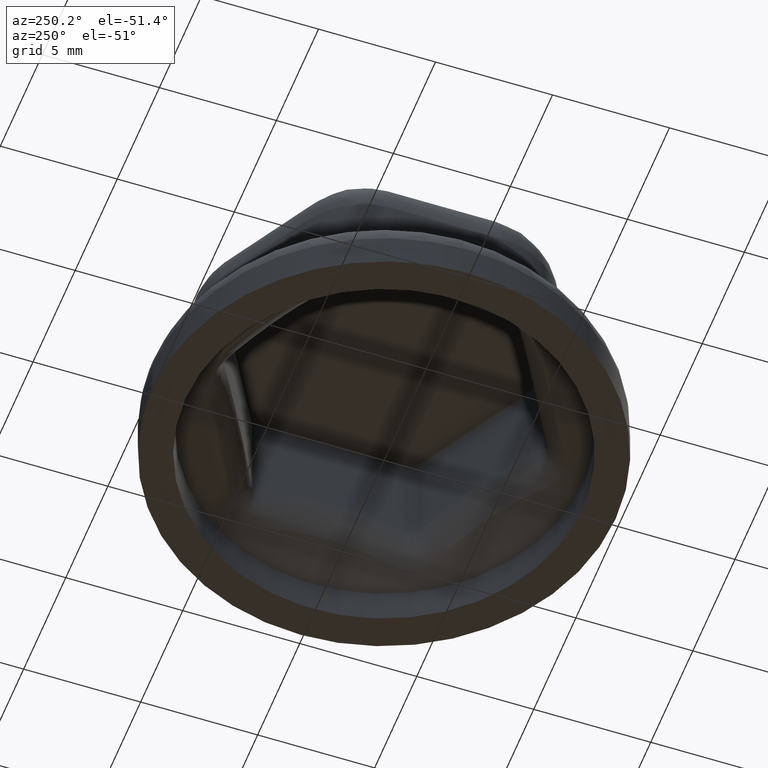
[diagram: clean part render]
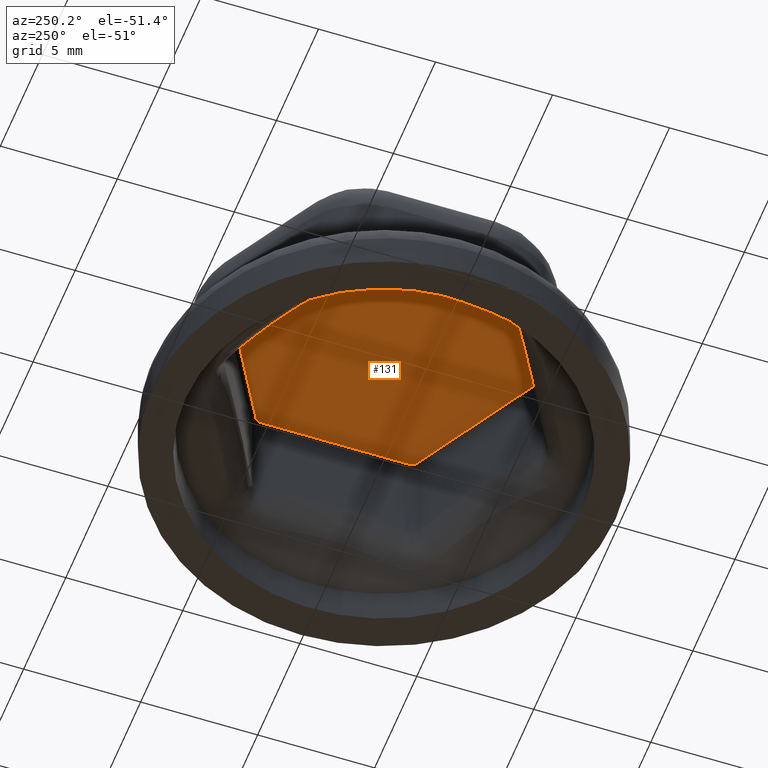
[diagram: same view with one face highlighted and labeled with its STEP entity id]
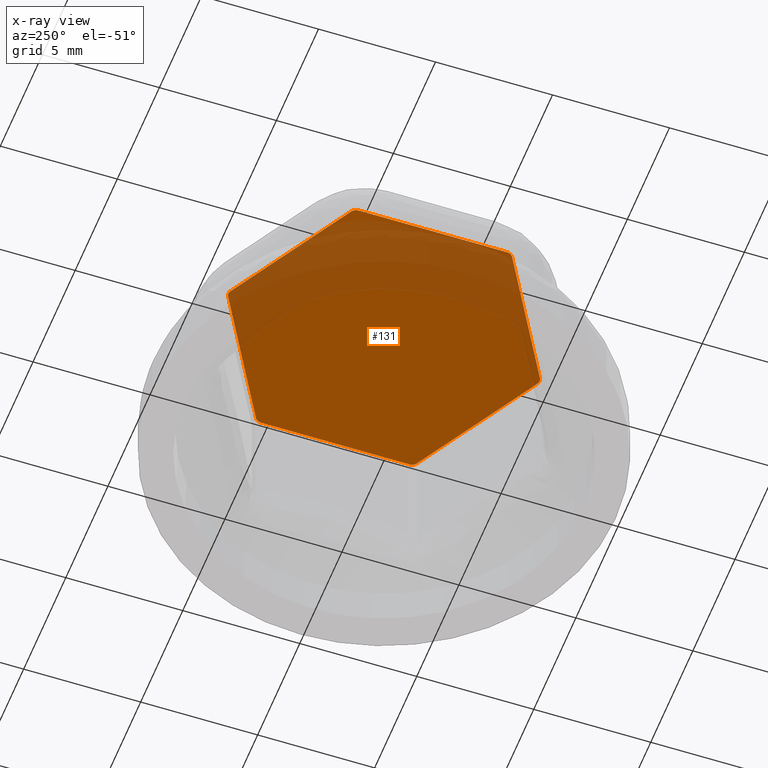
[diagram: x-ray of the same camera — body ghosted, the highlighted face saturated]
A machine part, auxiliary view. The second image highlights one B-rep face of the part: STEP entity #131.
The next image is the same camera in x-ray: the body ghosted, the highlighted face saturated — about 33% of this face is hidden behind the body in this view.
In plain terms, the highlighted planar face has unit normal (0, 0, 1).
Its self-contained STEP definition (entity closure, byte-faithful):
#131 = ADVANCED_FACE( '', ( #271 ), #272, .F. );
#271 = FACE_OUTER_BOUND( '', #2605, .T. );
#272 = PLANE( '', #2606 );
#2605 = EDGE_LOOP( '', ( #3063, #3064, #3065, #3066, #3067, #3068, #3069, #3070, #3071, #3072, #3073, #3074 ) );
#2606 = AXIS2_PLACEMENT_3D( '', #3075, #3076, #3077 );
#3063 = ORIENTED_EDGE( '', *, *, #3378, .F. );
#3064 = ORIENTED_EDGE( '', *, *, #3379, .F. );
#3065 = ORIENTED_EDGE( '', *, *, #3380, .F. );
#3066 = ORIENTED_EDGE( '', *, *, #3381, .F. );
#3067 = ORIENTED_EDGE( '', *, *, #3382, .F. );
#3068 = ORIENTED_EDGE( '', *, *, #3259, .F. );
#3069 = ORIENTED_EDGE( '', *, *, #3383, .F. );
#3070 = ORIENTED_EDGE( '', *, *, #3384, .F. );
#3071 = ORIENTED_EDGE( '', *, *, #3385, .F. );
#3072 = ORIENTED_EDGE( '', *, *, #3386, .F. );
#3073 = ORIENTED_EDGE( '', *, *, #3377, .F. );
#3074 = ORIENTED_EDGE( '', *, *, #3387, .F. );
#3075 = CARTESIAN_POINT( '', ( 6.00000000000000, 3.46410161513775, 7.50000000000000 ) );
#3076 = DIRECTION( '', ( 0.000000000000000, 0.000000000000000, 1.00000000000000 ) );
#3077 = DIRECTION( '', ( 0.500000000000000, 0.866025403784439, 0.000000000000000 ) );
#3259 = EDGE_CURVE( '', #3446, #3448, #3449, .T. );
#3377 = EDGE_CURVE( '', #3633, #3631, #3635, .T. );
#3378 = EDGE_CURVE( '', #3636, #3637, #3638, .T. );
#3379 = EDGE_CURVE( '', #3639, #3636, #3640, .T. );
#3380 = EDGE_CURVE( '', #3641, #3639, #3642, .T. );
#3381 = EDGE_CURVE( '', #3643, #3641, #3644, .T. );
#3382 = EDGE_CURVE( '', #3448, #3643, #3645, .T. );
#3383 = EDGE_CURVE( '', #3646, #3446, #3647, .T. );
#3384 = EDGE_CURVE( '', #3648, #3646, #3649, .T. );
#3385 = EDGE_CURVE( '', #3650, #3648, #3651, .T. );
#3386 = EDGE_CURVE( '', #3631, #3650, #3652, .T. );
#3387 = EDGE_CURVE( '', #3637, #3633, #3653, .T. );
#3446 = VERTEX_POINT( '', #3860 );
#3448 = VERTEX_POINT( '', #3862 );
#3449 = CIRCLE( '', #3863, 0.300000000000000 );
#3631 = VERTEX_POINT( '', #5124 );
#3633 = VERTEX_POINT( '', #5126 );
#3635 = LINE( '', #5128, #5129 );
#3636 = VERTEX_POINT( '', #5130 );
#3637 = VERTEX_POINT( '', #5131 );
#3638 = LINE( '', #5132, #5133 );
#3639 = VERTEX_POINT( '', #5134 );
#3640 = CIRCLE( '', #5135, 0.300000000000000 );
#3641 = VERTEX_POINT( '', #5136 );
#3642 = LINE( '', #5137, #5138 );
#3643 = VERTEX_POINT( '', #5139 );
#3644 = CIRCLE( '', #5140, 0.300000000000000 );
#3645 = LINE( '', #5141, #5142 );
#3646 = VERTEX_POINT( '', #5143 );
#3647 = LINE( '', #5144, #5145 );
#3648 = VERTEX_POINT( '', #5146 );
#3649 = CIRCLE( '', #5147, 0.300000000000000 );
#3650 = VERTEX_POINT( '', #5148 );
#3651 = LINE( '', #5149, #5150 );
#3652 = CIRCLE( '', #5151, 0.300000000000000 );
#3653 = CIRCLE( '', #5152, 0.300000000000000 );
#3860 = CARTESIAN_POINT( '', ( 5.80000000000000, 3.17542648054294, 7.50000000000000 ) );
#3862 = CARTESIAN_POINT( '', ( 5.65000000000000, 3.43523410167827, 7.50000000000000 ) );
#3863 = AXIS2_PLACEMENT_3D( '', #5219, #5220, #5221 );
#5124 = CARTESIAN_POINT( '', ( -0.149999999999999, -6.61066058222121, 7.50000000000000 ) );
#5126 = CARTESIAN_POINT( '', ( -5.65000000000000, -3.43523410167827, 7.50000000000000 ) );
#5128 = CARTESIAN_POINT( '', ( -0.150000000000000, -6.61066058222121, 7.50000000000000 ) );
#5129 = VECTOR( '', #5384, 1000.00000000000 );
#5130 = CARTESIAN_POINT( '', ( -5.80000000000000, 3.17542648054294, 7.50000000000000 ) );
#5131 = CARTESIAN_POINT( '', ( -5.80000000000000, -3.17542648054294, 7.50000000000000 ) );
#5132 = CARTESIAN_POINT( '', ( -5.80000000000000, -3.17542648054294, 7.50000000000000 ) );
#5133 = VECTOR( '', #5385, 1000.00000000000 );
#5134 = CARTESIAN_POINT( '', ( -5.65000000000000, 3.43523410167827, 7.50000000000000 ) );
#5135 = AXIS2_PLACEMENT_3D( '', #5386, #5387, #5388 );
#5136 = CARTESIAN_POINT( '', ( -0.149999999999998, 6.61066058222121, 7.50000000000000 ) );
#5137 = CARTESIAN_POINT( '', ( -5.65000000000000, 3.43523410167827, 7.50000000000000 ) );
#5138 = VECTOR( '', #5389, 1000.00000000000 );
#5139 = CARTESIAN_POINT( '', ( 0.150000000000000, 6.61066058222121, 7.50000000000000 ) );
#5140 = AXIS2_PLACEMENT_3D( '', #5390, #5391, #5392 );
#5141 = CARTESIAN_POINT( '', ( 0.149999999999998, 6.61066058222122, 7.50000000000000 ) );
#5142 = VECTOR( '', #5393, 1000.00000000000 );
#5143 = CARTESIAN_POINT( '', ( 5.80000000000000, -3.17542648054294, 7.50000000000000 ) );
#5144 = CARTESIAN_POINT( '', ( 5.80000000000000, 3.17542648054295, 7.50000000000000 ) );
#5145 = VECTOR( '', #5394, 1000.00000000000 );
#5146 = CARTESIAN_POINT( '', ( 5.65000000000000, -3.43523410167827, 7.50000000000000 ) );
#5147 = AXIS2_PLACEMENT_3D( '', #5395, #5396, #5397 );
#5148 = CARTESIAN_POINT( '', ( 0.150000000000001, -6.61066058222121, 7.50000000000000 ) );
#5149 = CARTESIAN_POINT( '', ( 5.65000000000000, -3.43523410167828, 7.50000000000000 ) );
#5150 = VECTOR( '', #5398, 1000.00000000000 );
#5151 = AXIS2_PLACEMENT_3D( '', #5399, #5400, #5401 );
#5152 = AXIS2_PLACEMENT_3D( '', #5402, #5403, #5404 );
#5219 = CARTESIAN_POINT( '', ( 5.50000000000000, 3.17542648054294, 7.50000000000000 ) );
#5220 = DIRECTION( '', ( 0.000000000000000, 0.000000000000000, 1.00000000000000 ) );
#5221 = DIRECTION( '', ( 1.00000000000000, 0.000000000000000, 0.000000000000000 ) );
#5384 = DIRECTION( '', ( 0.866025403784439, -0.500000000000000, 0.000000000000000 ) );
#5385 = DIRECTION( '', ( 1.11022302462516E-016, -1.00000000000000, 0.000000000000000 ) );
#5386 = CARTESIAN_POINT( '', ( -5.50000000000000, 3.17542648054294, 7.50000000000000 ) );
#5387 = DIRECTION( '', ( 0.000000000000000, 0.000000000000000, 1.00000000000000 ) );
#5388 = DIRECTION( '', ( 1.00000000000000, 0.000000000000000, 0.000000000000000 ) );
#5389 = DIRECTION( '', ( -0.866025403784439, -0.500000000000000, 0.000000000000000 ) );
#5390 = CARTESIAN_POINT( '', ( 1.51788304147971E-015, 6.35085296108588, 7.50000000000000 ) );
#5391 = DIRECTION( '', ( 0.000000000000000, 0.000000000000000, 1.00000000000000 ) );
#5392 = DIRECTION( '', ( 1.00000000000000, 0.000000000000000, 0.000000000000000 ) );
#5393 = DIRECTION( '', ( -0.866025403784439, 0.500000000000000, 0.000000000000000 ) );
#5394 = DIRECTION( '', ( 3.33066907387547E-016, 1.00000000000000, 0.000000000000000 ) );
#5395 = CARTESIAN_POINT( '', ( 5.50000000000000, -3.17542648054294, 7.50000000000000 ) );
#5396 = DIRECTION( '', ( 0.000000000000000, 0.000000000000000, 1.00000000000000 ) );
#5397 = DIRECTION( '', ( 1.00000000000000, 0.000000000000000, 0.000000000000000 ) );
#5398 = DIRECTION( '', ( 0.866025403784439, 0.500000000000000, 0.000000000000000 ) );
#5399 = CARTESIAN_POINT( '', ( 8.13151629364128E-016, -6.35085296108588, 7.50000000000000 ) );
#5400 = DIRECTION( '', ( 0.000000000000000, 0.000000000000000, 1.00000000000000 ) );
#5401 = DIRECTION( '', ( 1.00000000000000, 0.000000000000000, 0.000000000000000 ) );
#5402 = CARTESIAN_POINT( '', ( -5.50000000000000, -3.17542648054294, 7.50000000000000 ) );
#5403 = DIRECTION( '', ( 0.000000000000000, 0.000000000000000, 1.00000000000000 ) );
#5404 = DIRECTION( '', ( 1.00000000000000, 0.000000000000000, 0.000000000000000 ) );